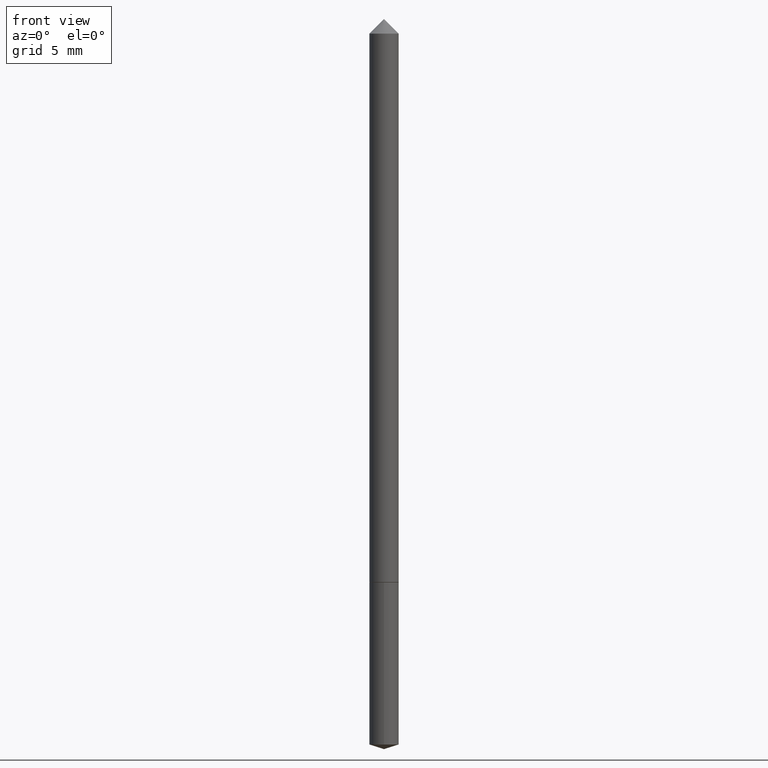
[diagram: clean part render]
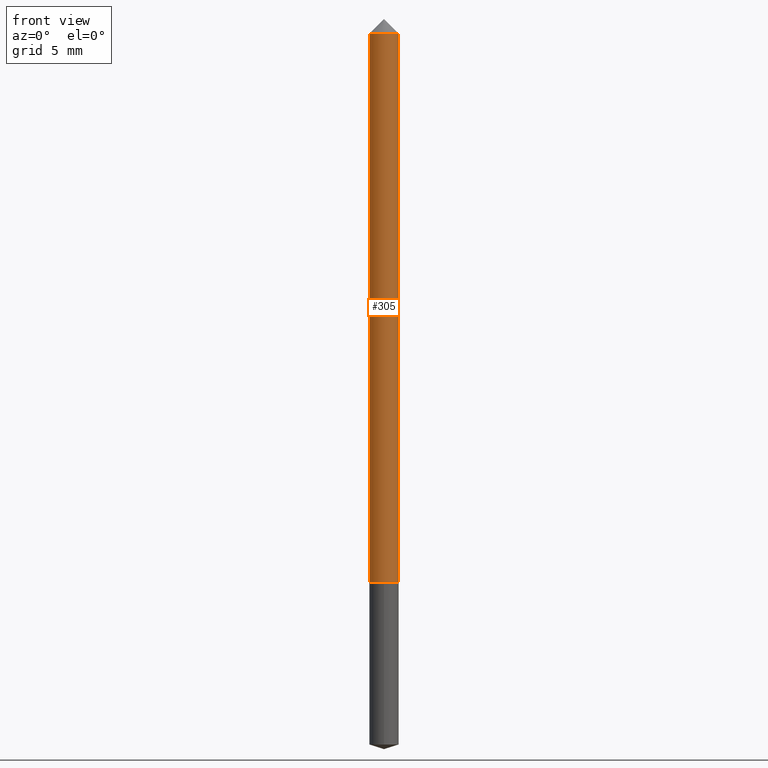
[diagram: same view with one face highlighted and labeled with its STEP entity id]
A machine part, front view. The second image highlights one B-rep face of the part: STEP entity #305.
In plain terms, the highlighted cylindrical surface (edge-blend (fillet) strip) has radius 0.5994 mm, axis along (-0, 0, 1).
Its self-contained STEP definition (entity closure, byte-faithful):
#7 = CARTESIAN_POINT ( 'NONE',  ( 0.02360000000000010700, -3.351822085289419381E-15, -0.9127999999999999448 ) ) ;
#34 = DIRECTION ( 'NONE',  ( 1.000000000000000000, -6.982962677686267499E-15, 0.000000000000000000 ) ) ;
#37 = EDGE_CURVE ( 'NONE', #145, #349, #49, .T. ) ;
#42 = ORIENTED_EDGE ( 'NONE', *, *, #51, .T. ) ;
#49 = CIRCLE ( 'NONE', #114, 0.02360000000000000639 ) ;
#50 = VECTOR ( 'NONE', #348, 39.37007874015748143 ) ;
#51 = EDGE_CURVE ( 'NONE', #176, #215, #360, .T. ) ;
#55 = DIRECTION ( 'NONE',  ( 1.000000000000000000, -6.982962677686267499E-15, 0.000000000000000000 ) ) ;
#64 = EDGE_CURVE ( 'NONE', #176, #145, #80, .T. ) ;
#80 = LINE ( 'NONE', #155, #92 ) ;
#92 = VECTOR ( 'NONE', #158, 39.37007874015748143 ) ;
#100 = EDGE_LOOP ( 'NONE', ( #174, #42, #347, #338 ) ) ;
#112 = CARTESIAN_POINT ( 'NONE',  ( 7.642090019328602662E-31, -1.091087918388490267E-16, -0.03125000000000020817 ) ) ;
#114 = AXIS2_PLACEMENT_3D ( 'NONE', #112, #282, #34 ) ;
#145 = VERTEX_POINT ( 'NONE', #315 ) ;
#155 = CARTESIAN_POINT ( 'NONE',  ( -0.02360000000000005843, 1.676880856393840590E-16, -1.160868681300160606E-30 ) ) ;
#158 = DIRECTION ( 'NONE',  ( -2.445468806185136877E-29, 3.491481338843145188E-15, 1.000000000000000000 ) ) ;
#167 = CARTESIAN_POINT ( 'NONE',  ( -0.02360000000000010700, -3.019336080456638236E-15, -0.9127999999999999448 ) ) ;
#174 = ORIENTED_EDGE ( 'NONE', *, *, #64, .F. ) ;
#176 = VERTEX_POINT ( 'NONE', #167 ) ;
#181 = CARTESIAN_POINT ( 'NONE',  ( 0.02360000000000005843, -1.647979191933962724E-16, 1.150777719087843758E-30 ) ) ;
#182 = CARTESIAN_POINT ( 'NONE',  ( 0.000000000000000000, 0.000000000000000000, 0.000000000000000000 ) ) ;
#185 = AXIS2_PLACEMENT_3D ( 'NONE', #182, #354, #292 ) ;
#197 = AXIS2_PLACEMENT_3D ( 'NONE', #219, #358, #55 ) ;
#215 = VERTEX_POINT ( 'NONE', #7 ) ;
#219 = CARTESIAN_POINT ( 'NONE',  ( 2.232223926285792489E-29, -3.187024166096022738E-15, -0.9127999999999999448 ) ) ;
#238 = CYLINDRICAL_SURFACE ( 'NONE', #185, 0.02360000000000005843 ) ;
#249 = EDGE_CURVE ( 'NONE', #215, #349, #297, .T. ) ;
#269 = FACE_OUTER_BOUND ( 'NONE', #100, .T. ) ;
#282 = DIRECTION ( 'NONE',  ( -2.445468806185136597E-29, 3.491481338843145583E-15, 1.000000000000000000 ) ) ;
#292 = DIRECTION ( 'NONE',  ( 1.000000000000000000, -6.982962677686265133E-15, 4.876176775795935793E-29 ) ) ;
#297 = LINE ( 'NONE', #181, #50 ) ;
#305 = ADVANCED_FACE ( 'NONE', ( #269 ), #238, .T. ) ;
#315 = CARTESIAN_POINT ( 'NONE',  ( -0.02360000000000000639, -1.480378393328050233E-15, -0.03125000000000020817 ) ) ;
#329 = CARTESIAN_POINT ( 'NONE',  ( 0.02360000000000000639, -2.739067110322449540E-16, -0.03125000000000020817 ) ) ;
#338 = ORIENTED_EDGE ( 'NONE', *, *, #37, .F. ) ;
#347 = ORIENTED_EDGE ( 'NONE', *, *, #249, .T. ) ;
#348 = DIRECTION ( 'NONE',  ( -2.445468806185136877E-29, 3.491481338843145188E-15, 1.000000000000000000 ) ) ;
#349 = VERTEX_POINT ( 'NONE', #329 ) ;
#354 = DIRECTION ( 'NONE',  ( -2.445468806185136597E-29, 3.491481338843145583E-15, 1.000000000000000000 ) ) ;
#358 = DIRECTION ( 'NONE',  ( -2.445468806185136597E-29, 3.491481338843145583E-15, 1.000000000000000000 ) ) ;
#360 = CIRCLE ( 'NONE', #197, 0.02360000000000010700 ) ;